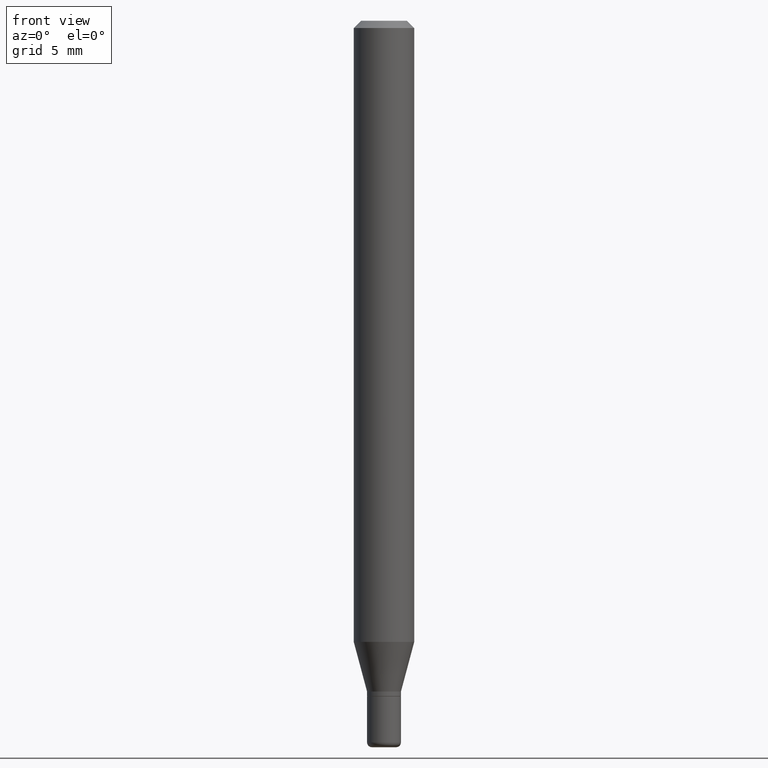
[diagram: clean part render]
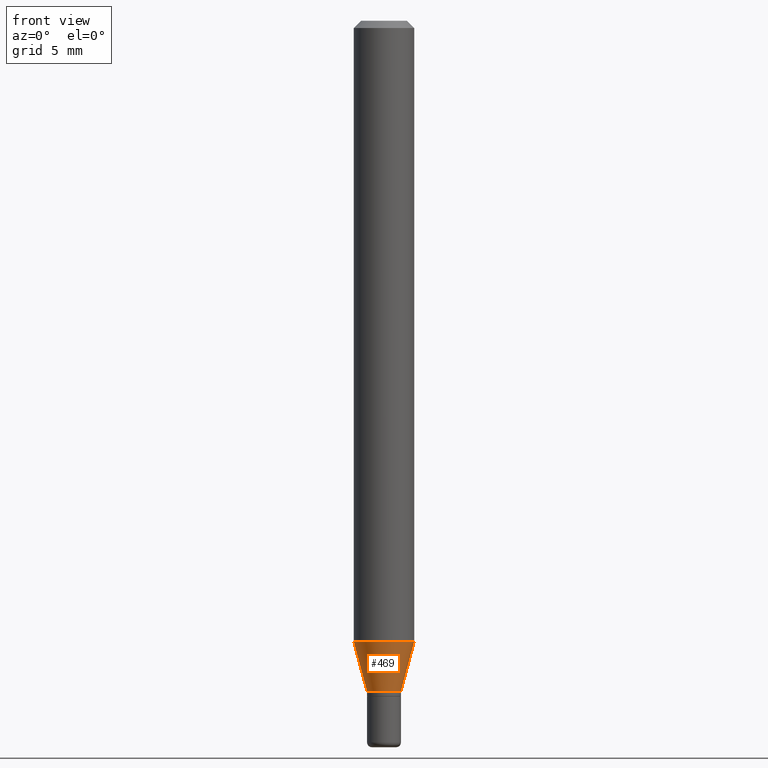
[diagram: same view with one face highlighted and labeled with its STEP entity id]
A machine part, front view. The second image highlights one B-rep face of the part: STEP entity #469.
In plain terms, the highlighted conical surface has half-angle 15 deg.
Its self-contained STEP definition (entity closure, byte-faithful):
#21 = ORIENTED_EDGE ( 'NONE', *, *, #141, .T. ) ;
#32 = DIRECTION ( 'NONE',  ( 0.2588190451025207395, 1.565188264969626109E-15, 0.9659258262890682012 ) ) ;
#34 = CARTESIAN_POINT ( 'NONE',  ( -0.06250000000000000000, -4.033276836316059521E-15, -1.282368602791855938 ) ) ;
#48 = DIRECTION ( 'NONE',  ( 1.000000000000000000, -6.982962677686280910E-15, 0.000000000000000000 ) ) ;
#57 = CIRCLE ( 'NONE', #383, 0.03499999999999998251 ) ;
#71 = EDGE_CURVE ( 'NONE', #91, #286, #260, .T. ) ;
#74 = CARTESIAN_POINT ( 'NONE',  ( 0.03499999999999998251, -5.080105348016776545E-15, -1.385000000000000009 ) ) ;
#79 = VECTOR ( 'NONE', #32, 39.37007874015748854 ) ;
#85 = CARTESIAN_POINT ( 'NONE',  ( 0.06250000000000000000, -4.913801213521515384E-15, -1.282368602791855938 ) ) ;
#91 = VERTEX_POINT ( 'NONE', #226 ) ;
#100 = VECTOR ( 'NONE', #414, 39.37007874015748854 ) ;
#115 = LINE ( 'NONE', #264, #100 ) ;
#123 = DIRECTION ( 'NONE',  ( 1.000000000000000000, -6.982962677686262766E-15, 0.000000000000000000 ) ) ;
#141 = EDGE_CURVE ( 'NONE', #390, #91, #57, .T. ) ;
#150 = CARTESIAN_POINT ( 'NONE',  ( 3.386974296566414366E-29, -4.835701654297756579E-15, -1.385000000000000009 ) ) ;
#164 = DIRECTION ( 'NONE',  ( -2.445468806185136597E-29, 3.491481338843145583E-15, 1.000000000000000000 ) ) ;
#178 = EDGE_CURVE ( 'NONE', #390, #437, #115, .T. ) ;
#197 = CARTESIAN_POINT ( 'NONE',  ( -0.03499999999999998251, -4.310144266548890801E-15, -1.385000000000000009 ) ) ;
#199 = AXIS2_PLACEMENT_3D ( 'NONE', #446, #496, #123 ) ;
#212 = EDGE_LOOP ( 'NONE', ( #443, #21, #442, #253 ) ) ;
#226 = CARTESIAN_POINT ( 'NONE',  ( 0.03499999999999998251, -5.080105348016776545E-15, -1.385000000000000009 ) ) ;
#253 = ORIENTED_EDGE ( 'NONE', *, *, #265, .F. ) ;
#260 = LINE ( 'NONE', #74, #79 ) ;
#264 = CARTESIAN_POINT ( 'NONE',  ( -0.03499999999999998251, -4.587011696781721293E-15, -1.385000000000000009 ) ) ;
#265 = EDGE_CURVE ( 'NONE', #437, #286, #307, .T. ) ;
#286 = VERTEX_POINT ( 'NONE', #85 ) ;
#307 = CIRCLE ( 'NONE', #199, 0.06250000000000000000 ) ;
#342 = DIRECTION ( 'NONE',  ( -2.445468806185136597E-29, 3.491481338843145583E-15, 1.000000000000000000 ) ) ;
#358 = AXIS2_PLACEMENT_3D ( 'NONE', #395, #164, #48 ) ;
#375 = DIRECTION ( 'NONE',  ( 1.000000000000000000, -6.982962677686280910E-15, 0.000000000000000000 ) ) ;
#383 = AXIS2_PLACEMENT_3D ( 'NONE', #150, #342, #375 ) ;
#390 = VERTEX_POINT ( 'NONE', #197 ) ;
#395 = CARTESIAN_POINT ( 'NONE',  ( 3.386974296566414366E-29, -4.835701654297756579E-15, -1.385000000000000009 ) ) ;
#414 = DIRECTION ( 'NONE',  ( -0.2588190451025207395, 5.211531920934546309E-15, 0.9659258262890682012 ) ) ;
#431 = FACE_OUTER_BOUND ( 'NONE', #212, .T. ) ;
#437 = VERTEX_POINT ( 'NONE', #34 ) ;
#442 = ORIENTED_EDGE ( 'NONE', *, *, #71, .T. ) ;
#443 = ORIENTED_EDGE ( 'NONE', *, *, #178, .F. ) ;
#446 = CARTESIAN_POINT ( 'NONE',  ( 3.135992416158701602E-29, -4.477366046166122926E-15, -1.282368602791855938 ) ) ;
#449 = CONICAL_SURFACE ( 'NONE', #358, 0.03499999999999998251, 0.2617993877991494633 ) ;
#469 = ADVANCED_FACE ( 'NONE', ( #431 ), #449, .T. ) ;
#496 = DIRECTION ( 'NONE',  ( -2.445468806185136597E-29, 3.491481338843145583E-15, 1.000000000000000000 ) ) ;